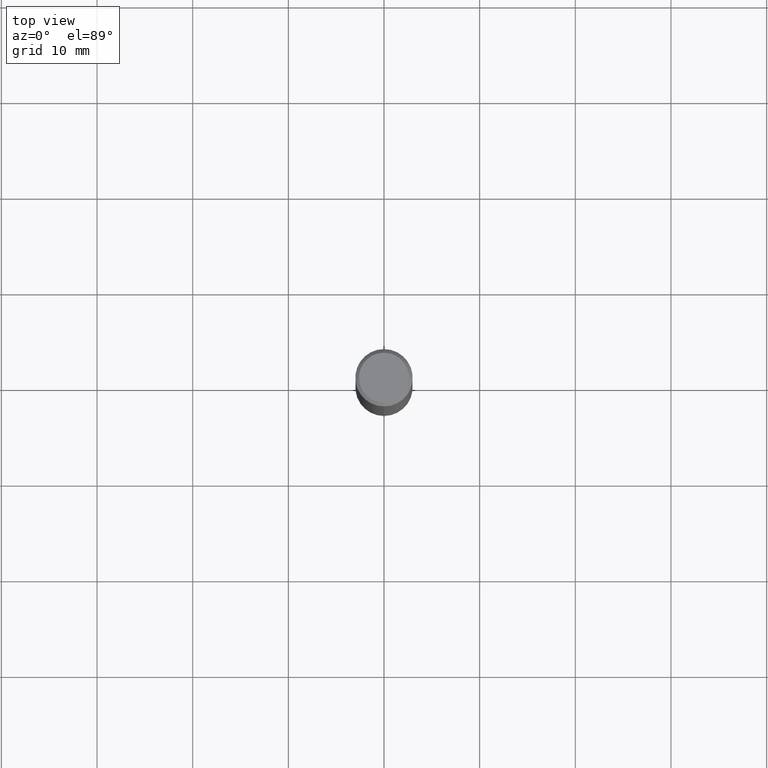
[diagram: clean part render]
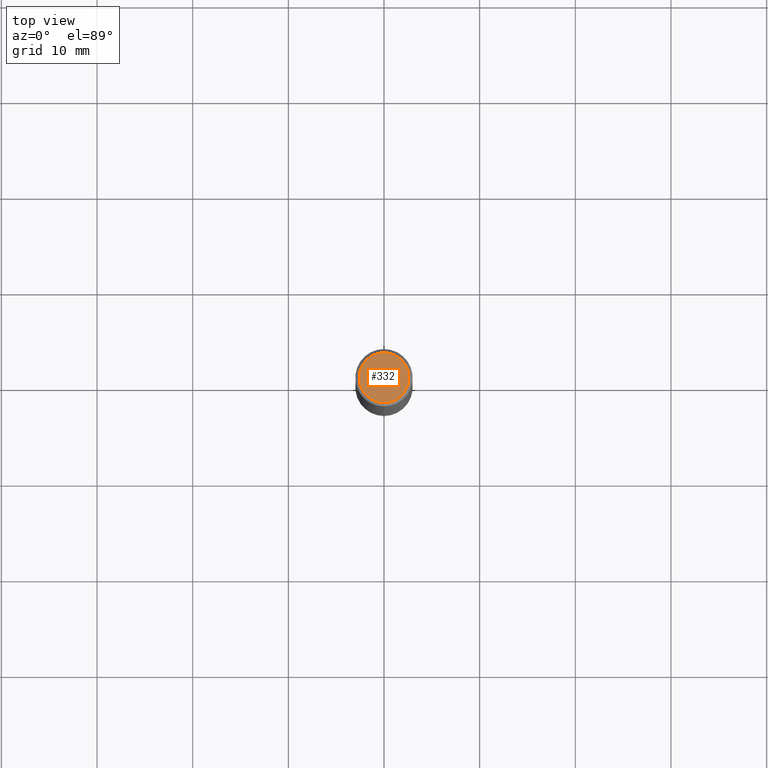
[diagram: same view with one face highlighted and labeled with its STEP entity id]
A machine part, top view. The second image highlights one B-rep face of the part: STEP entity #332.
In plain terms, the highlighted planar face has unit normal (-0, 0, 1).
Its self-contained STEP definition (entity closure, byte-faithful):
#6 = EDGE_LOOP ( 'NONE', ( #322, #394 ) ) ;
#24 = VERTEX_POINT ( 'NONE', #331 ) ;
#61 = AXIS2_PLACEMENT_3D ( 'NONE', #370, #296, #174 ) ;
#82 = AXIS2_PLACEMENT_3D ( 'NONE', #233, #461, #150 ) ;
#83 = CARTESIAN_POINT ( 'NONE',  ( 7.199434520694515404E-16, 0.1030999999999996503, -3.601440490485514910E-16 ) ) ;
#131 = EDGE_CURVE ( 'NONE', #362, #24, #490, .T. ) ;
#150 = DIRECTION ( 'NONE',  ( 6.982962677686265922E-15, 1.000000000000000000, -3.494812012482185269E-15 ) ) ;
#155 = FACE_OUTER_BOUND ( 'NONE', #6, .T. ) ;
#174 = DIRECTION ( 'NONE',  ( 6.982962677686265922E-15, 1.000000000000000000, -3.494812012482185269E-15 ) ) ;
#196 = CARTESIAN_POINT ( 'NONE',  ( -7.587710785535285755E-16, -0.1030999999999996503, 3.603151184869120747E-16 ) ) ;
#204 = EDGE_CURVE ( 'NONE', #24, #362, #264, .T. ) ;
#233 = CARTESIAN_POINT ( 'NONE',  ( 0.000000000000000000, 0.000000000000000000, 0.000000000000000000 ) ) ;
#264 = CIRCLE ( 'NONE', #82, 0.1030999999999996503 ) ;
#296 = DIRECTION ( 'NONE',  ( 2.443143009213839704E-29, -3.494812012482185664E-15, -1.000000000000000000 ) ) ;
#310 = PLANE ( 'NONE',  #480 ) ;
#322 = ORIENTED_EDGE ( 'NONE', *, *, #204, .F. ) ;
#331 = CARTESIAN_POINT ( 'NONE',  ( 7.199434520694515404E-16, 0.1030999999999996503, -3.603151184869120747E-16 ) ) ;
#332 = ADVANCED_FACE ( 'NONE', ( #155 ), #310, .T. ) ;
#362 = VERTEX_POINT ( 'NONE', #196 ) ;
#370 = CARTESIAN_POINT ( 'NONE',  ( 0.000000000000000000, 0.000000000000000000, 0.000000000000000000 ) ) ;
#387 = DIRECTION ( 'NONE',  ( -6.982962677686265922E-15, -1.000000000000000000, 3.494812012482185664E-15 ) ) ;
#394 = ORIENTED_EDGE ( 'NONE', *, *, #131, .F. ) ;
#426 = DIRECTION ( 'NONE',  ( -2.443143009213839143E-29, 3.494812012482185664E-15, 1.000000000000000000 ) ) ;
#461 = DIRECTION ( 'NONE',  ( 2.443143009213839704E-29, -3.494812012482185664E-15, -1.000000000000000000 ) ) ;
#480 = AXIS2_PLACEMENT_3D ( 'NONE', #83, #426, #387 ) ;
#490 = CIRCLE ( 'NONE', #61, 0.1030999999999996503 ) ;